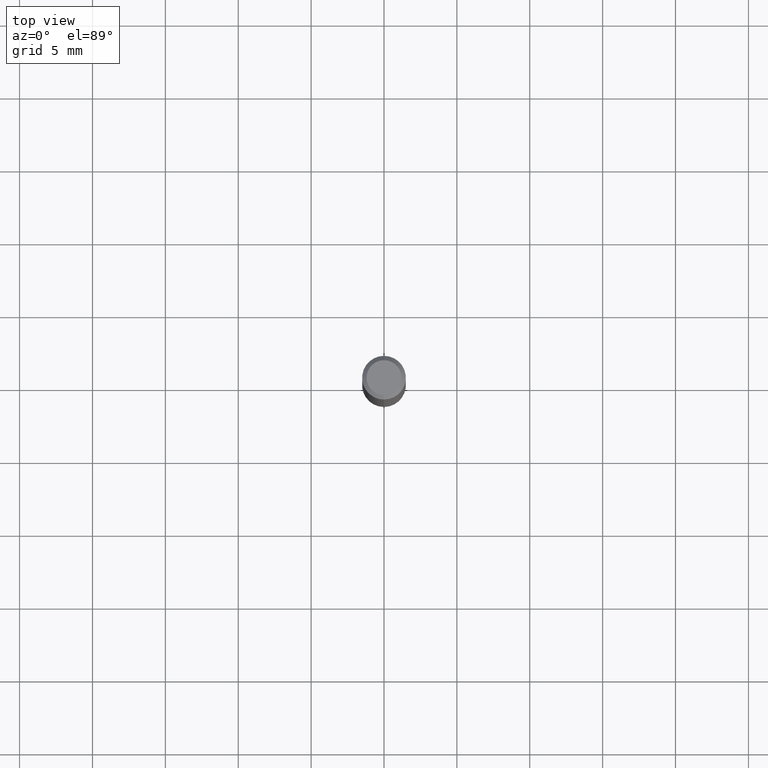
[diagram: clean part render]
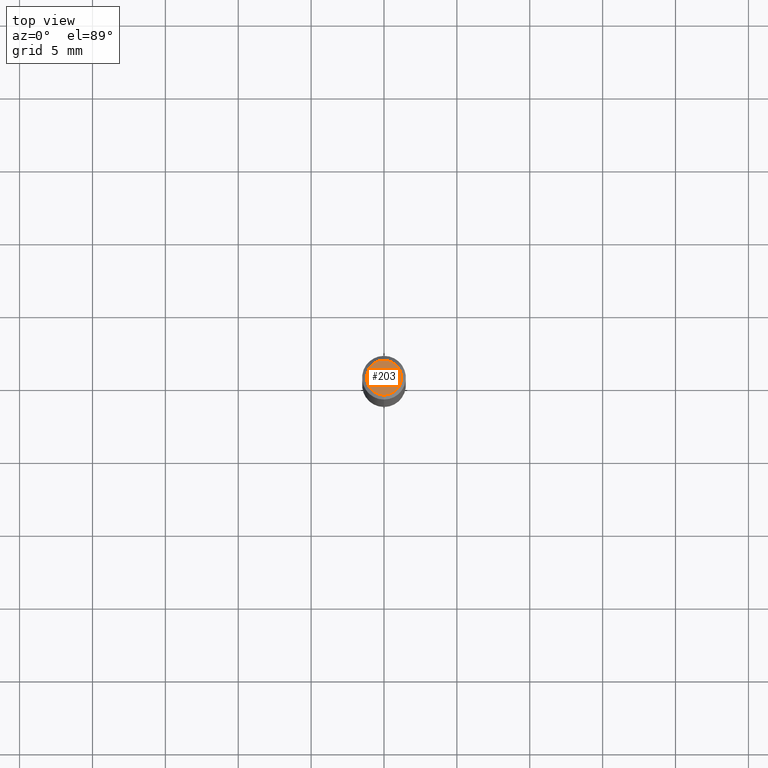
[diagram: same view with one face highlighted and labeled with its STEP entity id]
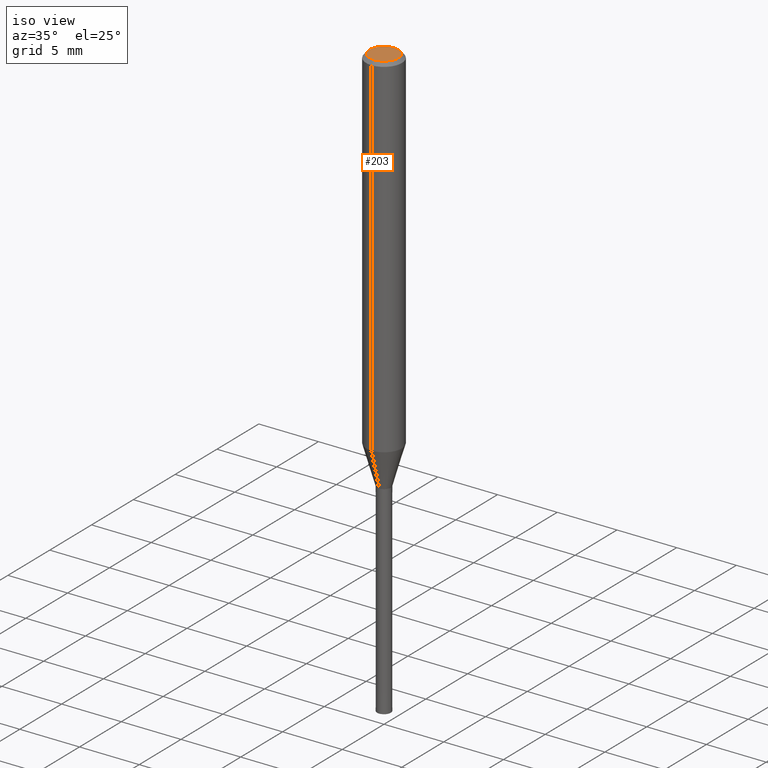
[diagram: same view with one face highlighted and labeled with its STEP entity id]
A machine part, top view. The second image highlights one B-rep face of the part: STEP entity #203.
A second angle (iso view) of the same face is appended — the face is thin or edge-on in the first view.
In plain terms, the highlighted planar face has unit normal (-0, 0, 1).
Its self-contained STEP definition (entity closure, byte-faithful):
#113=EDGE_CURVE('',#189,#121,#249,.T.);
#121=VERTEX_POINT('',#257);
#171=EDGE_CURVE('',#121,#189,#315,.T.);
#189=VERTEX_POINT('',#336);
#203=ADVANCED_FACE('',(#352),#353,.T.);
#249=CIRCLE('',#404,1.2);
#257=CARTESIAN_POINT('',(1.46952762458685E-016,-1.2,0.0));
#315=CIRCLE('',#489,1.2);
#336=CARTESIAN_POINT('',(0.0,1.2,0.0));
#352=FACE_OUTER_BOUND('',#531,.T.);
#353=PLANE('',#532);
#404=AXIS2_PLACEMENT_3D('',#558,#559,#560);
#489=AXIS2_PLACEMENT_3D('',#645,#646,#647);
#531=EDGE_LOOP('',(#697,#698));
#532=AXIS2_PLACEMENT_3D('',#699,#700,#701);
#558=CARTESIAN_POINT('',(0.0,0.0,0.0));
#559=DIRECTION('',(0.0,0.0,-1.0));
#560=DIRECTION('',(0.0,1.0,0.0));
#645=CARTESIAN_POINT('',(0.0,0.0,0.0));
#646=DIRECTION('',(0.0,0.0,-1.0));
#647=DIRECTION('',(0.0,1.0,0.0));
#697=ORIENTED_EDGE('',*,*,#113,.F.);
#698=ORIENTED_EDGE('',*,*,#171,.F.);
#699=CARTESIAN_POINT('',(0.0,0.6,0.0));
#700=DIRECTION('',(-0.0,0.0,1.0));
#701=DIRECTION('',(0.0,-1.0,0.0));